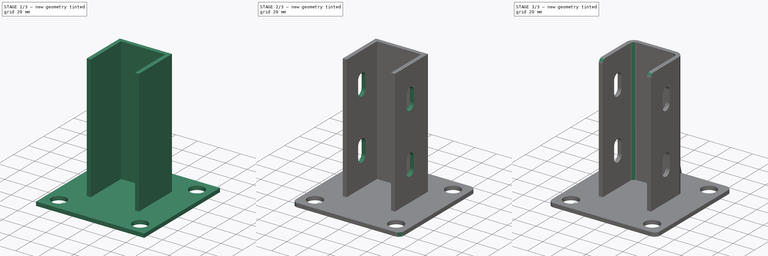
[diagram: build sequence overview — one tinted view per stage of 3, left to right]
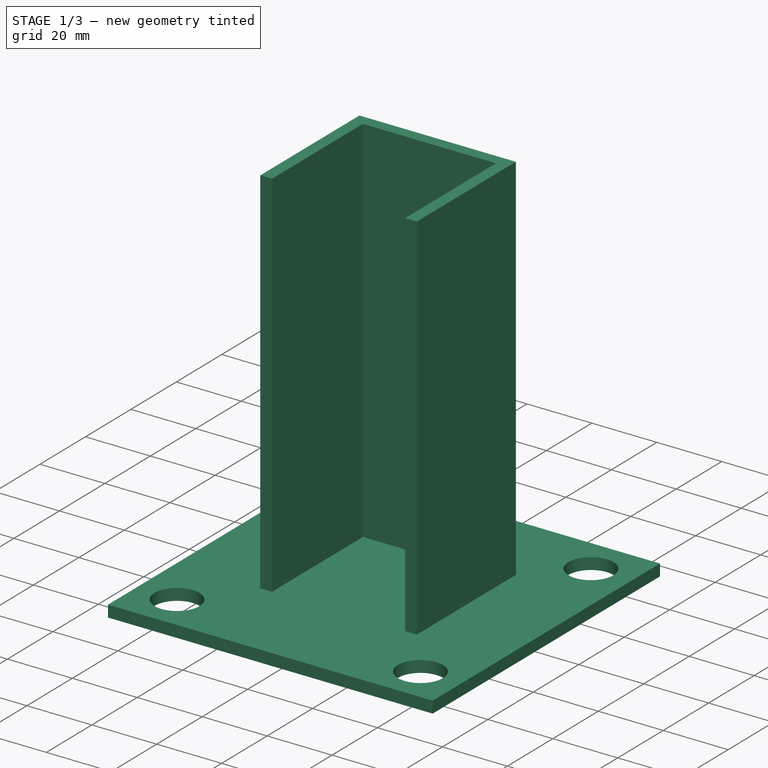
[diagram: stage 1 of 3 — iso view after this stage's code; geometry added in this stage tinted green]
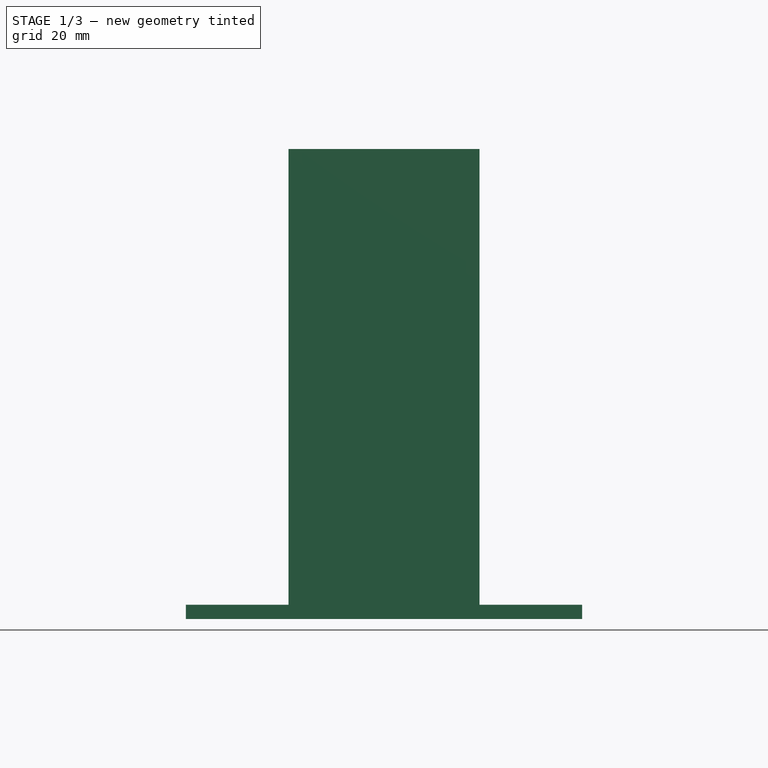
[diagram: stage 1 of 3 — front view after this stage's code; geometry added in this stage tinted green]
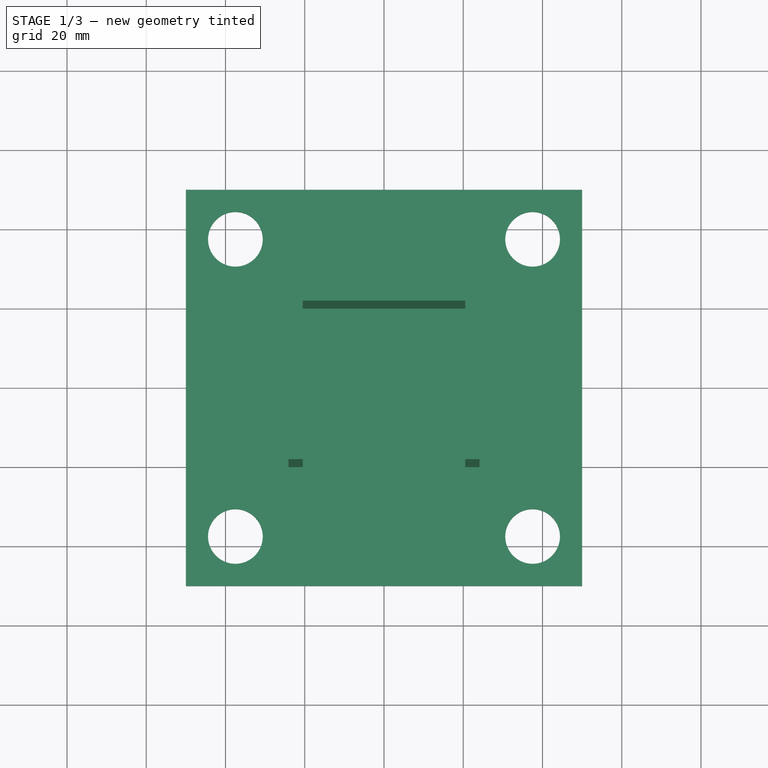
[diagram: stage 1 of 3 — top view after this stage's code; geometry added in this stage tinted green]
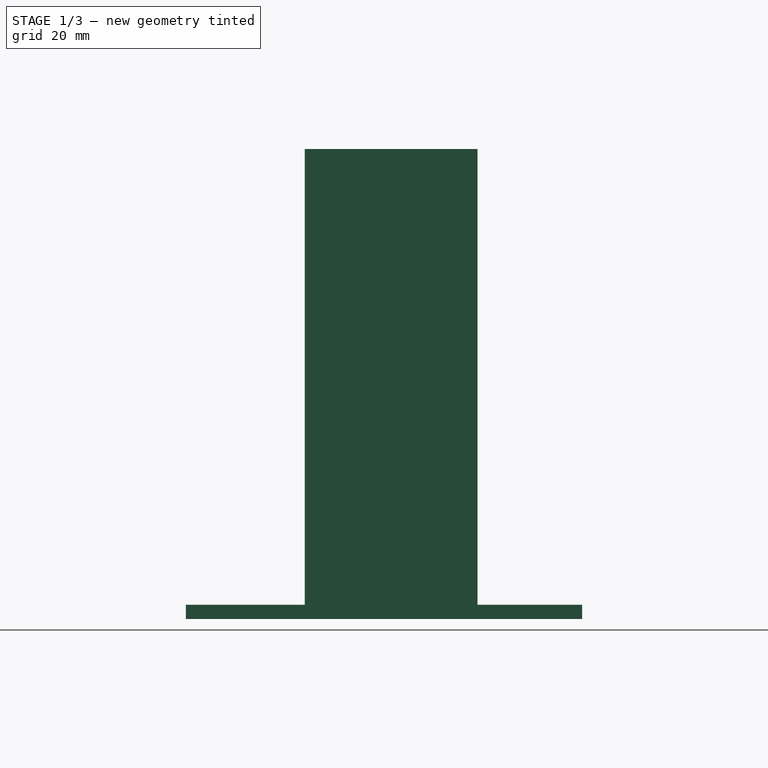
[diagram: stage 1 of 3 — right view after this stage's code; geometry added in this stage tinted green]
FCSTD DOCUMENT  (FreeCAD 1.0R39319 (Git))
Label: 4040__Fixed Foot Stand
License: All rights reserved
LicenseURL: https://en.wikipedia.org/wiki/All_rights_reserved
objects: Sketcher::SketchObject×4, PartDesign::Pad×3, PartDesign::Fillet×3, PartDesign::Pocket×1, PartDesign::Body×1
note: 30 computed .brp shape members not serialized (recipe doc carries the construction recipe); baked Part::Feature solids carry a one-line shape summary decoded from their .brp

FEATURE [Sketcher::SketchObject] Sketch
  ArcFitTolerance = 1e-06
  AttachmentSupport = -> [XY_Plane]
  FullyConstrained = true
  MakeInternals = false
  MapMode = 5
  sketch-geometry (12):
    g0: LineSegment StartX=-50 StartY=50 StartZ=0 EndX=-50 EndY=-50 EndZ=0
    g1: LineSegment StartX=-50 StartY=-50 StartZ=0 EndX=50 EndY=-50 EndZ=0
    g2: LineSegment StartX=50 StartY=-50 StartZ=0 EndX=50 EndY=50 EndZ=0
    g3: LineSegment StartX=50 StartY=50 StartZ=0 EndX=-50 EndY=50 EndZ=0
    g4: Circle CenterX=37.5 CenterY=37.5 CenterZ=0 NormalX=0 NormalY=0 NormalZ=1 AngleXU=0 Radius=6.9
    g5: Circle CenterX=-37.5 CenterY=37.5 CenterZ=0 NormalX=0 NormalY=0 NormalZ=1 AngleXU=0 Radius=6.9
    g6: Circle CenterX=37.5 CenterY=-37.5 CenterZ=0 NormalX=0 NormalY=0 NormalZ=1 AngleXU=0 Radius=6.9
    g7: Circle CenterX=-37.5 CenterY=-37.5 CenterZ=0 NormalX=0 NormalY=0 NormalZ=1 AngleXU=0 Radius=6.9
    g8: LineSegment [constr] StartX=-37.5 StartY=37.5 StartZ=0 EndX=-37.5 EndY=-37.5 EndZ=0
    g9: LineSegment [constr] StartX=-37.5 StartY=-37.5 StartZ=0 EndX=37.5 EndY=-37.5 EndZ=0
    g10: LineSegment [constr] StartX=37.5 StartY=-37.5 StartZ=0 EndX=37.5 EndY=37.5 EndZ=0
    g11: LineSegment [constr] StartX=37.5 StartY=37.5 StartZ=0 EndX=-37.5 EndY=37.5 EndZ=0
  constraints (30):
    c: Coincident(g0,g1)
    c: Coincident(g1,g2)
    c: Coincident(g2,g3)
    c: Coincident(g3,g0)
    c: Vertical(g0)
    c: Vertical(g2)
    c: Horizontal(g1)
    c: Horizontal(g3)
    c: Distance(g0,g2) = 100
    c: Symmetric(g1,g0,g-1)
    c: Coincident(g8,g9)
    c: Coincident(g9,g10)
    c: Coincident(g10,g11)
    c: Coincident(g11,g8)
    c: Vertical(g8)
    c: Vertical(g10)
    c: Horizontal(g9)
    c: Horizontal(g11)
    c: Coincident(g8,g5)
    c: Coincident(g9,g6)
    c: Coincident(g4,g10)
    c: Coincident(g7,g8)
    c: Symmetric(g4,g7,g-1)
    c: Diameter(g4) = 13.8
    c: Equal(g4,g6)
    c: Equal(g6,g7)
    c: Equal(g7,g5)
    c: Equal(g0,g3)
    c: Equal(g11,g8)
    c: DistanceX(g11,g11) = 75
FEATURE [PartDesign::Pad] Pad
  Direction = (0,0,1)
  Length = 3.6
  Length2 = 10
  Profile = -> Sketch
  ReferenceAxis = -> Sketch [N_Axis]
  Refine = true
  Suppressed = false
  Type = 0
FEATURE [Sketcher::SketchObject] Sketch001
  ArcFitTolerance = 1e-06
  AttachmentSupport = -> [Pad]
  FullyConstrained = true
  MakeInternals = false
  MapMode = 5
  Placement = pos=(0,0,3.6) rot=(0,0,1;0rad)
  sketch-geometry (10):
    g0: LineSegment StartX=-20.5 StartY=-20 StartZ=0 EndX=-20.5 EndY=20 EndZ=0
    g1: LineSegment StartX=-20.5 StartY=20 StartZ=0 EndX=20.5 EndY=20 EndZ=0
    g2: LineSegment StartX=20.5 StartY=20 StartZ=0 EndX=20.5 EndY=-20 EndZ=0
    g3: LineSegment StartX=20.5 StartY=-20 StartZ=0 EndX=24.1 EndY=-20 EndZ=0
    g4: LineSegment StartX=24.1 StartY=-20 StartZ=0 EndX=24.1 EndY=23.6 EndZ=0
    g5: LineSegment StartX=24.1 StartY=23.6 StartZ=0 EndX=-24.1 EndY=23.6 EndZ=0
    g6: LineSegment StartX=-24.1 StartY=23.6 StartZ=0 EndX=-24.1 EndY=-20 EndZ=0
    g7: LineSegment StartX=-24.1 StartY=-20 StartZ=0 EndX=-20.5 EndY=-20 EndZ=0
    g8: LineSegment [constr] StartX=-20.5 StartY=-20 StartZ=0 EndX=20.5 EndY=-20 EndZ=0
    g9: LineSegment [constr] StartX=20.5 StartY=20 StartZ=0 EndX=20.5 EndY=23.6 EndZ=0
  constraints (28):
    c: Vertical(g0)
    c: Coincident(g0,g1)
    c: Horizontal(g1)
    c: Coincident(g1,g2)
    c: Vertical(g2)
    c: Coincident(g2,g3)
    c: Coincident(g3,g4)
    c: Coincident(g4,g5)
    c: Horizontal(g5)
    c: Coincident(g5,g6)
    c: Vertical(g6)
    c: Coincident(g6,g7)
    c: Coincident(g7,g0)
    c: Symmetric(g2,g0,g-1)
    c: Horizontal(g7)
    c: Horizontal(g3)
    c: Vertical(g4)
    c: Coincident(g8,g0)
    c: Coincident(g8,g2)
    c: Horizontal(g8)
    c: Equal(g3,g7)
    c: DistanceX(g3,g3) = 3.6
    c: Coincident(g9,g1)
    c: PointOnObject(g9,g5)
    c: Vertical(g9)
    c: Equal(g9,g3)
    c: DistanceY(g0,g0) = 40
    c: DistanceX(g0,g2) = 41
FEATURE [PartDesign::Pad] Pad001
  BaseFeature = -> Pad
  Direction = (0,0,1)
  Length = 115
  Length2 = 10
  Profile = -> Sketch001
  ReferenceAxis = -> Sketch001 [N_Axis]
  Refine = true
  Suppressed = false
  Type = 0
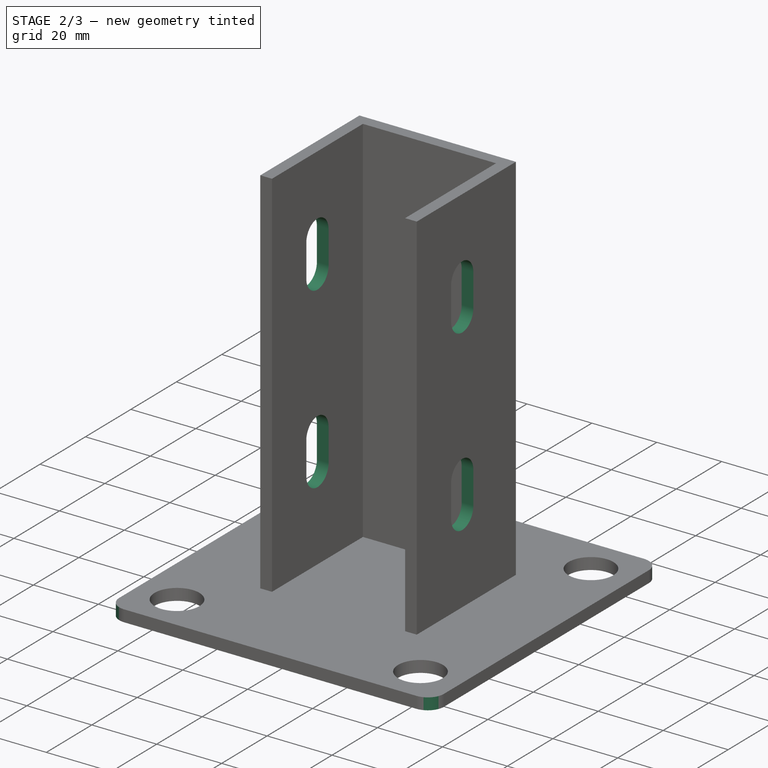
[diagram: stage 2 of 3 — iso view after this stage's code; geometry added in this stage tinted green]
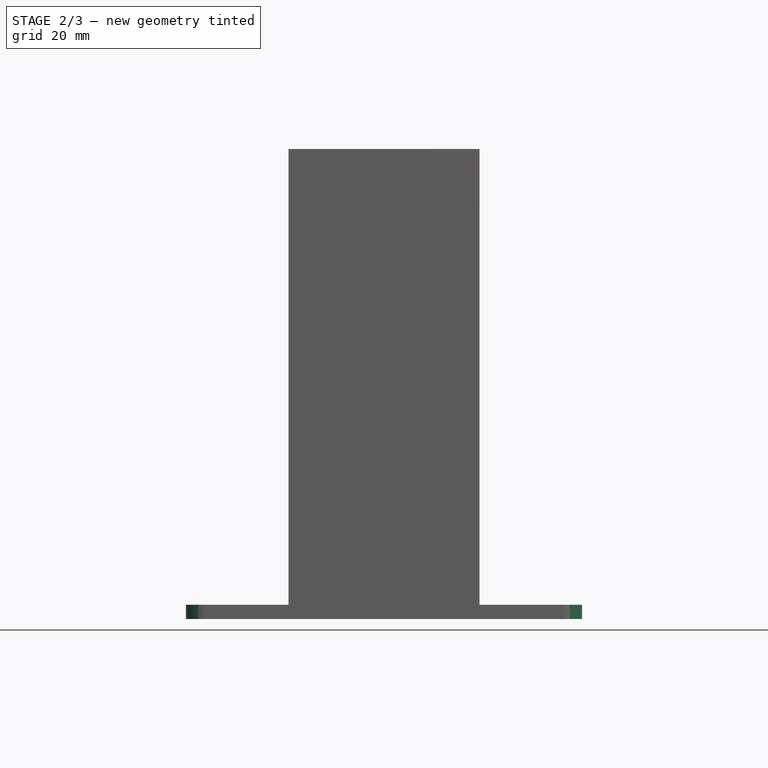
[diagram: stage 2 of 3 — front view after this stage's code; geometry added in this stage tinted green]
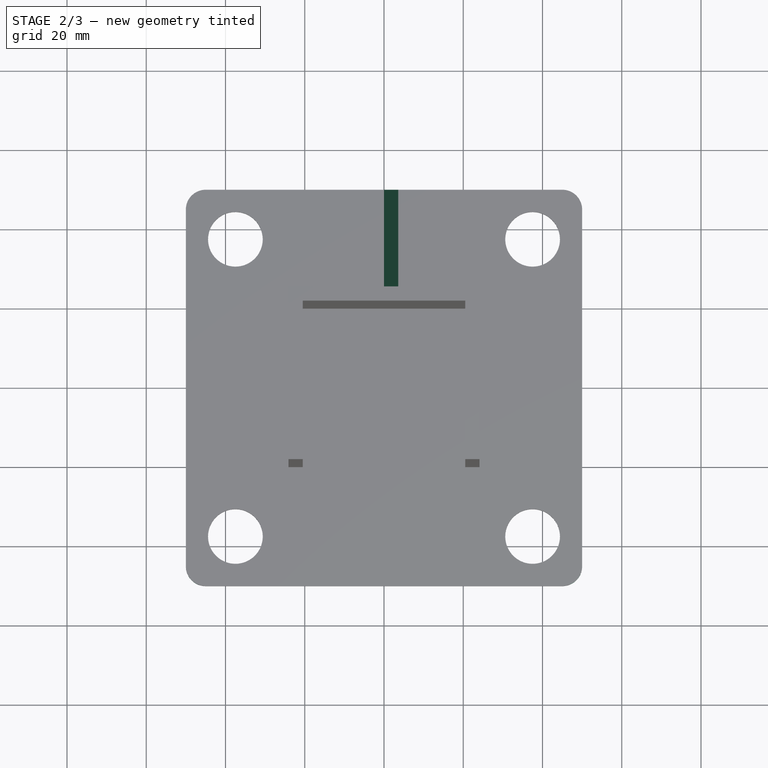
[diagram: stage 2 of 3 — top view after this stage's code; geometry added in this stage tinted green]
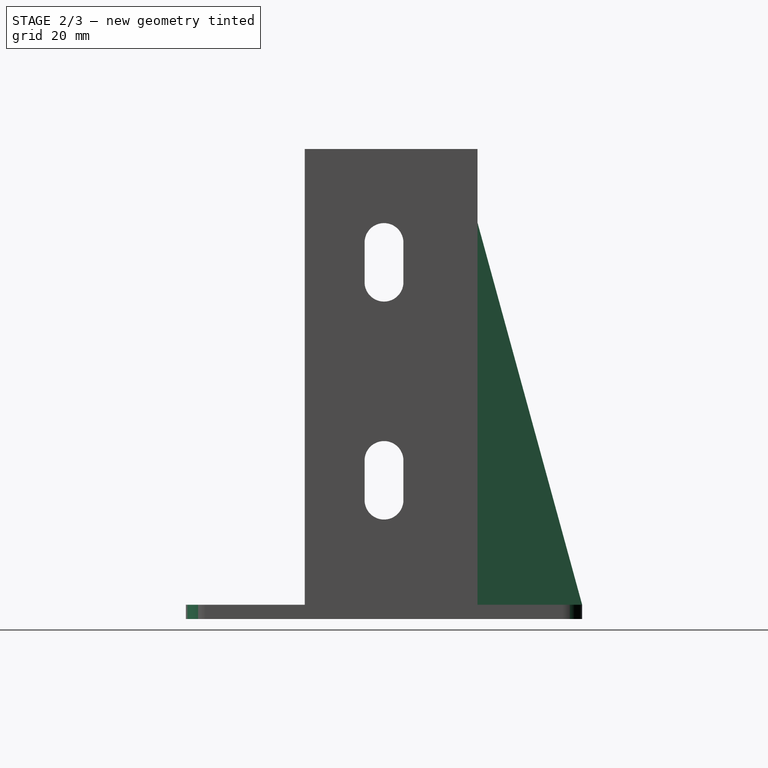
[diagram: stage 2 of 3 — right view after this stage's code; geometry added in this stage tinted green]
FEATURE [Sketcher::SketchObject] Sketch002
  ArcFitTolerance = 1e-06
  AttachmentSupport = -> [Pad001]
  FullyConstrained = true
  MakeInternals = false
  MapMode = 5
  Placement = pos=(24.1,0,0) rot=(0.57735,0.57735,0.57735;2.0944rad)
  sketch-geometry (8):
    g0: ArcOfCircle CenterX=0 CenterY=95 CenterZ=0 NormalX=0 NormalY=0 NormalZ=1 AngleXU=0 Radius=4.9 StartAngle=8e-16 EndAngle=3.14159
    g1: ArcOfCircle CenterX=-1e-16 CenterY=85 CenterZ=0 NormalX=0 NormalY=0 NormalZ=1 AngleXU=0 Radius=4.9 StartAngle=3.14159 EndAngle=6.28319
    g2: LineSegment StartX=4.9 StartY=95 StartZ=0 EndX=4.9 EndY=85 EndZ=0
    g3: LineSegment StartX=-4.9 StartY=95 StartZ=0 EndX=-4.9 EndY=85 EndZ=0
    g4: ArcOfCircle CenterX=0 CenterY=40 CenterZ=0 NormalX=0 NormalY=0 NormalZ=1 AngleXU=0 Radius=4.9 StartAngle=0 EndAngle=3.14159
    g5: ArcOfCircle CenterX=1e-16 CenterY=30 CenterZ=0 NormalX=0 NormalY=0 NormalZ=1 AngleXU=0 Radius=4.9 StartAngle=3.14159 EndAngle=6.28319
    g6: LineSegment StartX=4.9 StartY=40 StartZ=0 EndX=4.9 EndY=30 EndZ=0
    g7: LineSegment StartX=-4.9 StartY=40 StartZ=0 EndX=-4.9 EndY=30 EndZ=0
  constraints (20):
    c: Tangent(g0,g2) = 1.5708
    c: Tangent(g0,g3) = -1.5708
    c: Tangent(g1,g2) = 1.5708
    c: Tangent(g1,g3) = -1.5708
    c: Equal(g0,g1)
    c: Vertical(g3)
    c: PointOnObject(g0,g-2)
    c: Tangent(g4,g6) = 1.5708
    c: Tangent(g4,g7) = -1.5708
    c: Tangent(g5,g6) = 1.5708
    c: Tangent(g5,g7) = -1.5708
    c: Equal(g4,g5)
    c: Vertical(g7)
    c: PointOnObject(g4,g-2)
    c: Equal(g0,g4)
    c: Equal(g2,g6)
    c: Radius(g0) = 4.9
    c: DistanceY(g2,g2) = 10
    c: DistanceY(g-1,g5) = 30
    c: DistanceY(g4,g1) = 45
FEATURE [PartDesign::Pocket] Pocket
  BaseFeature = -> Pad001
  Direction = (-1,0,0)
  Length = 5
  Length2 = 5
  Profile = -> Sketch002
  ReferenceAxis = -> Sketch002 [N_Axis]
  Refine = true
  Suppressed = false
  Type = 1
FEATURE [Sketcher::SketchObject] Sketch003
  ArcFitTolerance = 1e-06
  AttachmentSupport = -> [YZ_Plane]
  ExternalGeometry = -> [Pocket]
  FullyConstrained = true
  MakeInternals = false
  MapMode = 5
  Placement = pos=(0,0,0) rot=(0.57735,0.57735,0.57735;2.0944rad)
  sketch-geometry (3):
    g0: LineSegment StartX=23.6 StartY=100 StartZ=0 EndX=50 EndY=3.6 EndZ=0
    g1: LineSegment StartX=50 StartY=3.6 StartZ=0 EndX=23.6 EndY=3.6 EndZ=0
    g2: LineSegment StartX=23.6 StartY=100 StartZ=0 EndX=23.6 EndY=3.6 EndZ=0
  constraints (7):
    c: PointOnObject(g0,g-3)
    c: Coincident(g0,g1)
    c: Coincident(g1,g-3)
    c: Coincident(g0,g-4)
    c: DistanceY(g-1,g0) = 100
    c: Coincident(g2,g0)
    c: Coincident(g2,g1)
FEATURE [PartDesign::Pad] Pad002
  BaseFeature = -> Pocket
  Direction = (1,0,0)
  Length = 3.6
  Length2 = 10
  Profile = -> Sketch003
  ReferenceAxis = -> Sketch003 [N_Axis]
  Refine = true
  Suppressed = false
  Type = 0
FEATURE [PartDesign::Fillet] Fillet
  Base = -> Pad002 [Edge1,Edge2,Edge10,Edge5]
  BaseFeature = -> Pad002
  Radius = 5
  Refine = true
  SupportTransform = false
  Suppressed = false
  UseAllEdges = false
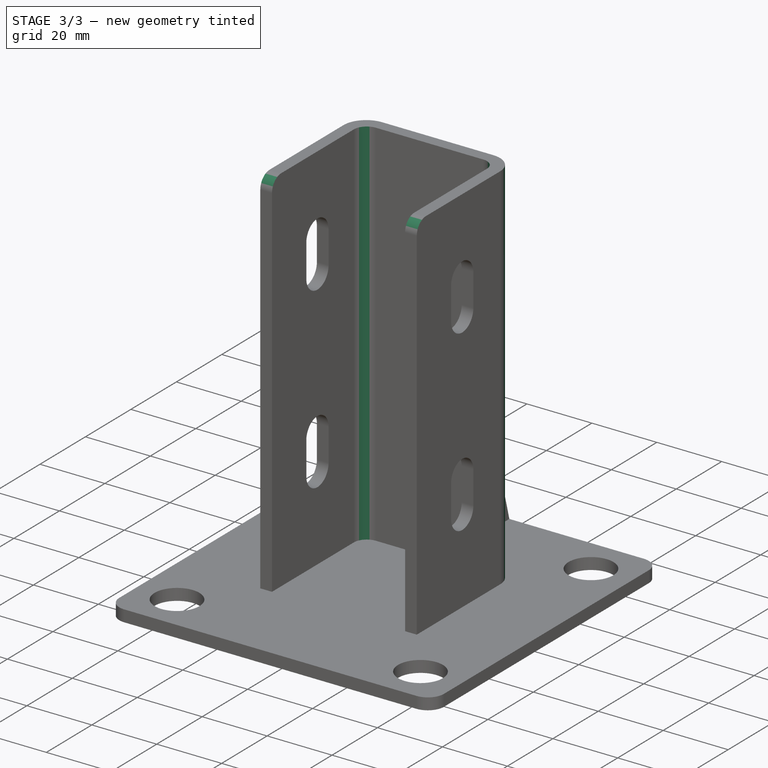
[diagram: stage 3 of 3 — iso view after this stage's code; geometry added in this stage tinted green]
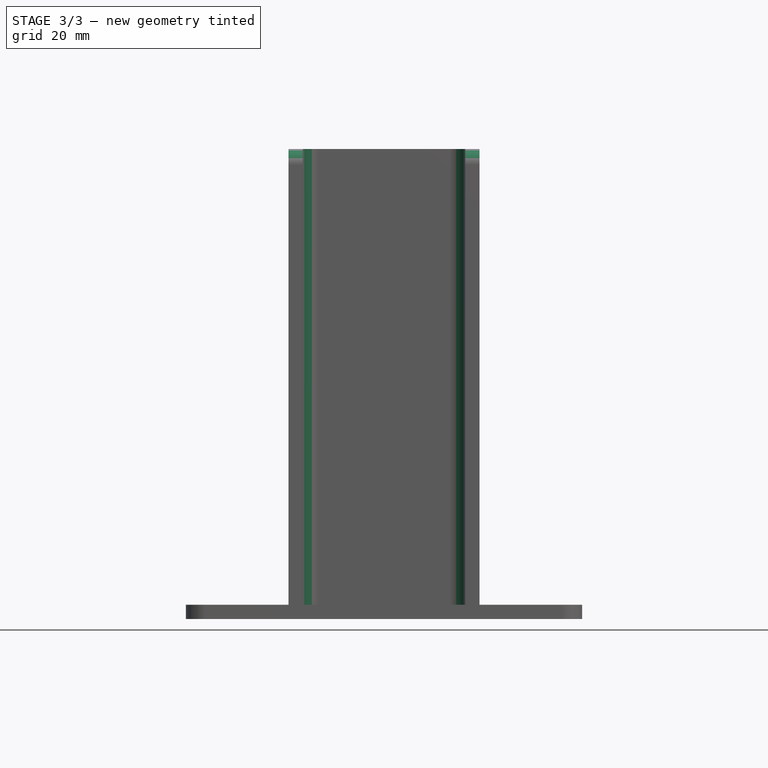
[diagram: stage 3 of 3 — front view after this stage's code; geometry added in this stage tinted green]
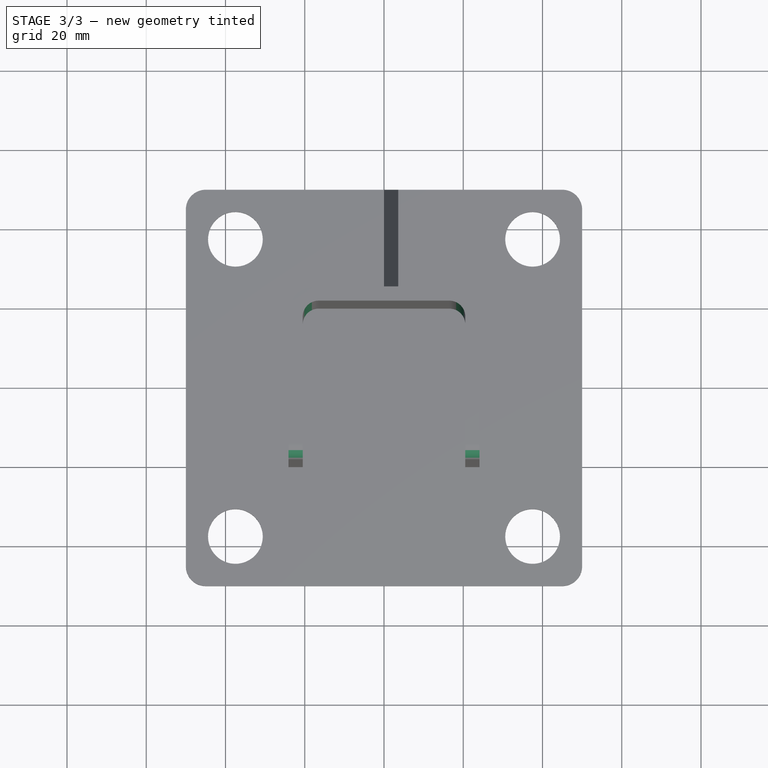
[diagram: stage 3 of 3 — top view after this stage's code; geometry added in this stage tinted green]
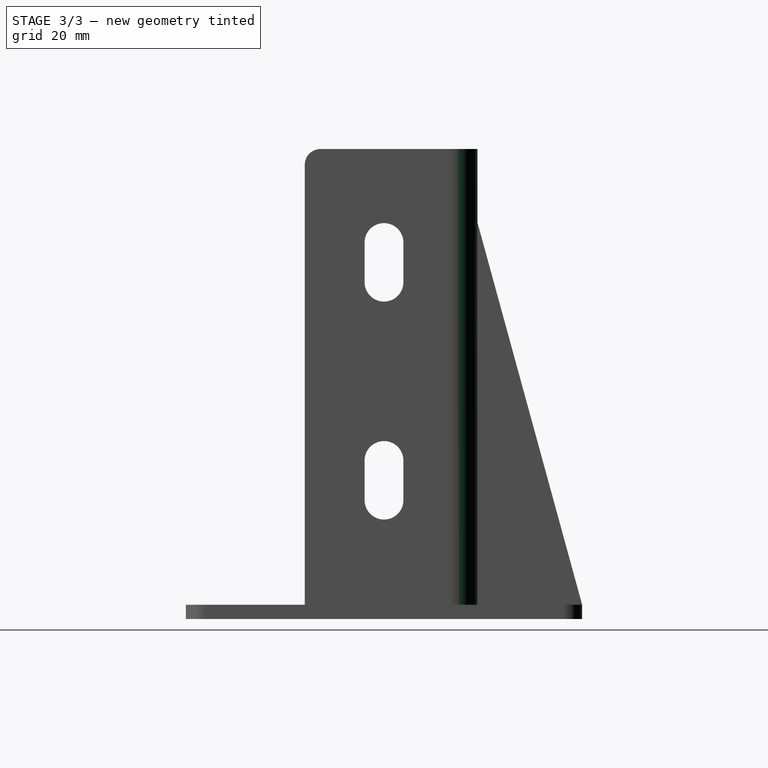
[diagram: stage 3 of 3 — right view after this stage's code; geometry added in this stage tinted green]
FEATURE [PartDesign::Fillet] Fillet001
  Base = -> Fillet [Edge92,Edge68,Edge79,Edge70]
  BaseFeature = -> Fillet
  Radius = 4
  Refine = true
  SupportTransform = false
  Suppressed = false
  UseAllEdges = false
FEATURE [PartDesign::Fillet] Fillet002
  Base = -> Fillet001 [Edge62,Edge47]
  BaseFeature = -> Fillet001
  Radius = 7
  Refine = true
  SupportTransform = false
  Suppressed = false
  UseAllEdges = false
FEATURE [PartDesign::Body] Body
  AllowCompound = false
  Group = -> [Sketch,Pad,Sketch001,Pad001,Sketch002,Pocket,Sketch003,Pad002,Fillet,Fillet001,Fillet002]
  Origin = -> Origin
  Tip = -> Fillet002
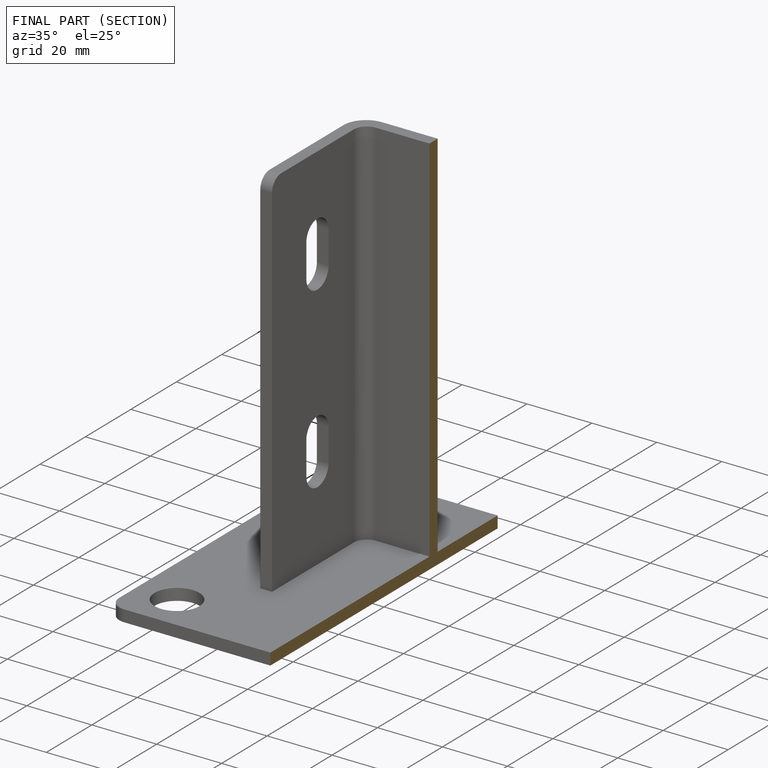
[diagram: finished part — half-section view (interior)]
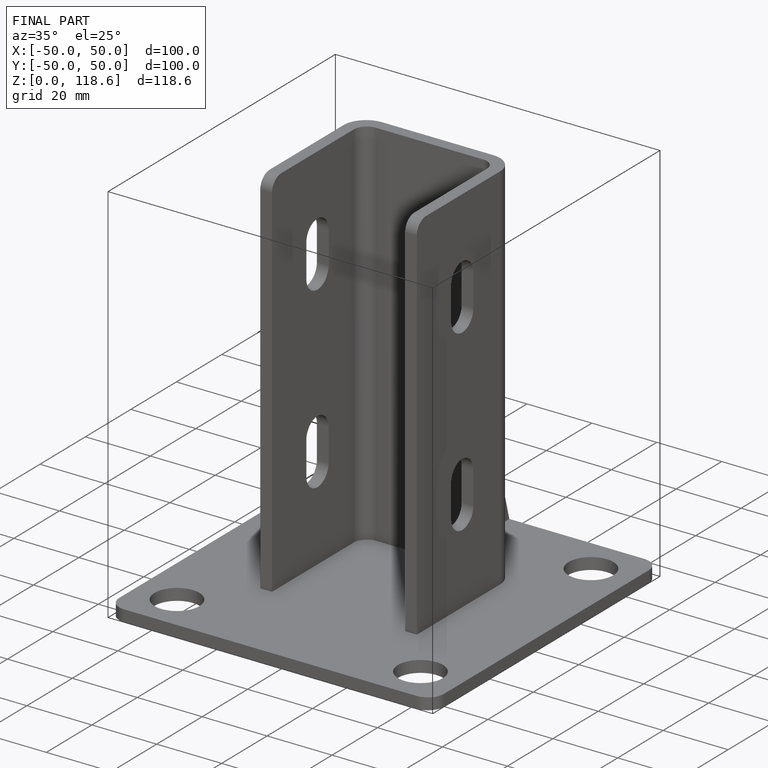
[diagram: finished part — iso view with bounding-box wireframe]
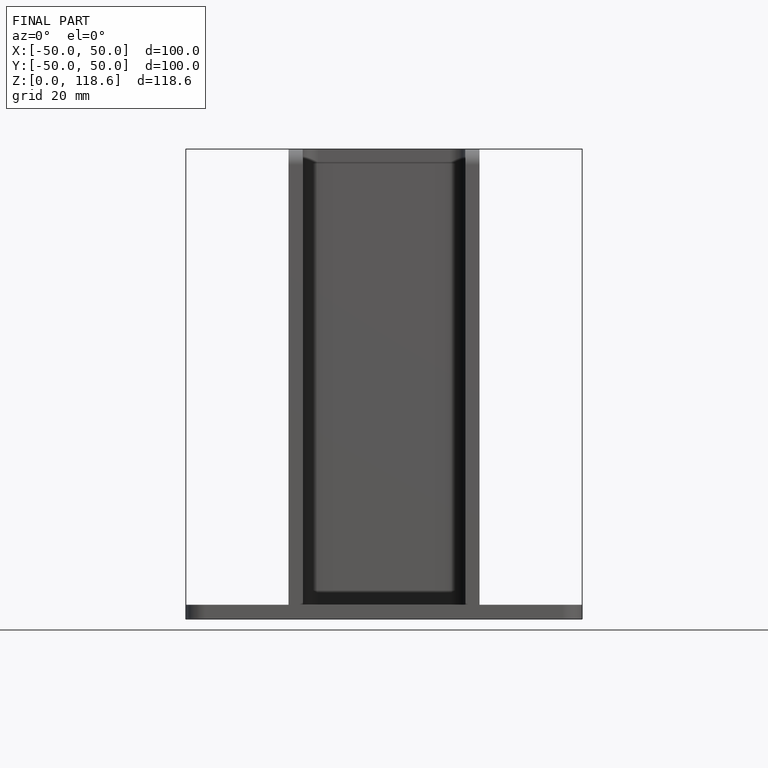
[diagram: finished part — front view with bounding-box wireframe]
